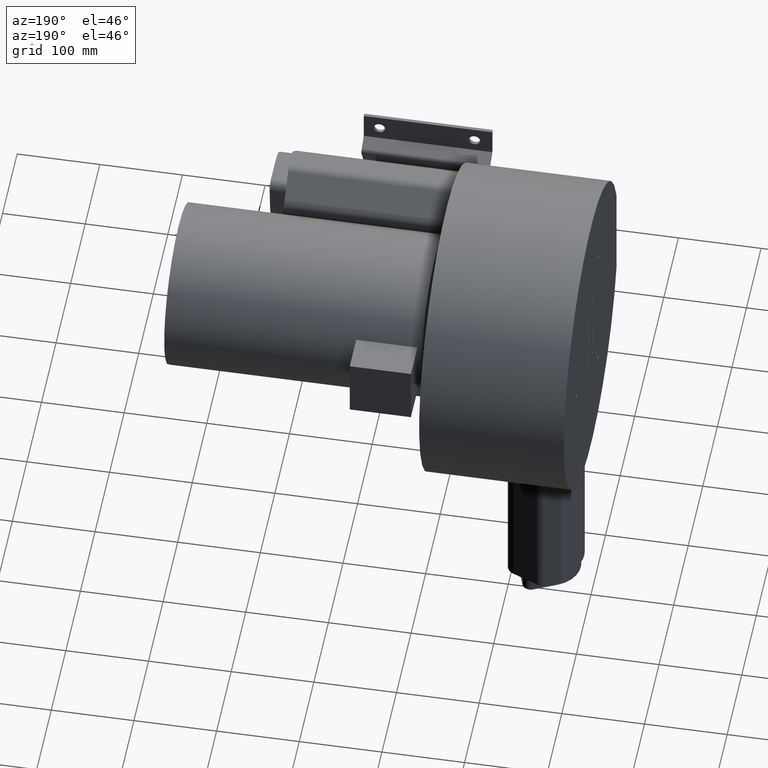
[diagram: clean part render]
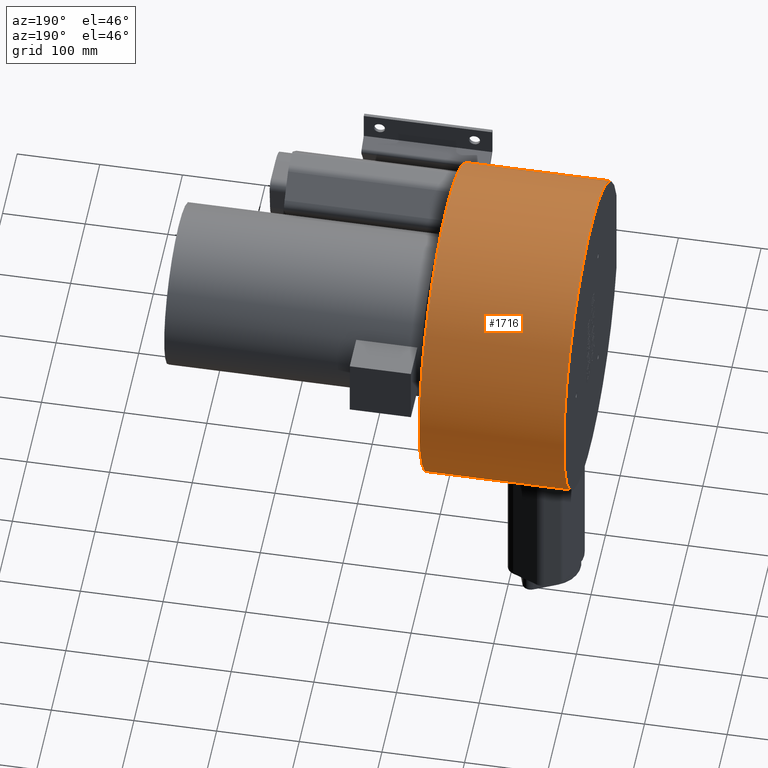
[diagram: same view with one face highlighted and labeled with its STEP entity id]
A machine part, auxiliary view. The second image highlights one B-rep face of the part: STEP entity #1716.
In plain terms, the highlighted cylindrical surface (partial cylindrical patch) has radius 186 mm, axis along (1, 0, 0).
Its self-contained STEP definition (entity closure, byte-faithful):
#331=CARTESIAN_POINT('',(175.0,-154.94938846386498,-102.8916275246644));
#332=VERTEX_POINT('',#331);
#340=CARTESIAN_POINT('',(175.0,-154.94938846386498,102.8916275246644));
#341=VERTEX_POINT('',#340);
#342=CARTESIAN_POINT('',(175.0,0.0,0.0));
#343=DIRECTION('',(1.0,0.0,0.0));
#344=DIRECTION('',(0.0,1.0,0.0));
#345=AXIS2_PLACEMENT_3D('',#342,#343,#344);
#346=CIRCLE('',#345,186.0);
#347=EDGE_CURVE('',#332,#341,#346,.T.);
#1478=CARTESIAN_POINT('',(87.5,0.0,0.0));
#1479=DIRECTION('',(1.0,0.0,0.0));
#1480=DIRECTION('',(0.0,1.0,0.0));
#1481=AXIS2_PLACEMENT_3D('',#1478,#1479,#1480);
#1482=CYLINDRICAL_SURFACE('',#1481,186.0);
#1483=CARTESIAN_POINT('',(150.0,-154.94938846386495,-102.89162752466441));
#1484=VERTEX_POINT('',#1483);
#1485=CARTESIAN_POINT('',(150.00000000000003,-175.0,-63.015871016752627));
#1486=VERTEX_POINT('',#1485);
#1487=CARTESIAN_POINT('',(150.00000000000003,0.0,0.0));
#1488=DIRECTION('',(-1.0,0.0,0.0));
#1489=DIRECTION('',(0.0,1.0,0.0));
#1490=AXIS2_PLACEMENT_3D('',#1487,#1488,#1489);
#1491=CIRCLE('',#1490,186.0);
#1492=EDGE_CURVE('',#1484,#1486,#1491,.T.);
#1493=ORIENTED_EDGE('',*,*,#1492,.T.);
#1494=CARTESIAN_POINT('',(0.0,-175.0,-63.015871016752627));
#1495=VERTEX_POINT('',#1494);
#1496=CARTESIAN_POINT('',(150.00000000000003,-175.0,-63.015871016752627));
#1497=DIRECTION('',(-1.0,0.0,0.0));
#1498=VECTOR('',#1497,150.00000000000003);
#1499=LINE('',#1496,#1498);
#1500=EDGE_CURVE('',#1486,#1495,#1499,.T.);
#1501=ORIENTED_EDGE('',*,*,#1500,.T.);
#1502=CARTESIAN_POINT('',(0.0,-175.0,63.015871016752627));
#1503=VERTEX_POINT('',#1502);
#1504=CARTESIAN_POINT('',(0.0,0.0,0.0));
#1505=DIRECTION('',(1.0,0.0,0.0));
#1506=DIRECTION('',(0.0,1.0,0.0));
#1507=AXIS2_PLACEMENT_3D('',#1504,#1505,#1506);
#1508=CIRCLE('',#1507,186.0);
#1509=EDGE_CURVE('',#1495,#1503,#1508,.T.);
#1510=ORIENTED_EDGE('',*,*,#1509,.T.);
#1511=CARTESIAN_POINT('',(150.00000000000003,-175.0,63.015871016752627));
#1512=VERTEX_POINT('',#1511);
#1513=CARTESIAN_POINT('',(0.0,-175.0,63.015871016752627));
#1514=DIRECTION('',(1.0,0.0,0.0));
#1515=VECTOR('',#1514,150.00000000000003);
#1516=LINE('',#1513,#1515);
#1517=EDGE_CURVE('',#1503,#1512,#1516,.T.);
#1518=ORIENTED_EDGE('',*,*,#1517,.T.);
#1519=CARTESIAN_POINT('',(150.0,-154.94938846386495,102.89162752466441));
#1520=VERTEX_POINT('',#1519);
#1521=CARTESIAN_POINT('',(150.00000000000003,0.0,0.0));
#1522=DIRECTION('',(-1.0,0.0,0.0));
#1523=DIRECTION('',(0.0,1.0,0.0));
#1524=AXIS2_PLACEMENT_3D('',#1521,#1522,#1523);
#1525=CIRCLE('',#1524,186.0);
#1526=EDGE_CURVE('',#1512,#1520,#1525,.T.);
#1527=ORIENTED_EDGE('',*,*,#1526,.T.);
#1528=CARTESIAN_POINT('',(150.0,-154.94938846386495,102.89162752466441));
#1529=DIRECTION('',(1.0,0.0,0.0));
#1530=VECTOR('',#1529,25.0);
#1531=LINE('',#1528,#1530);
#1532=EDGE_CURVE('',#1520,#341,#1531,.T.);
#1533=ORIENTED_EDGE('',*,*,#1532,.T.);
#1534=ORIENTED_EDGE('',*,*,#347,.F.);
#1535=CARTESIAN_POINT('',(175.0,-154.94938846386495,-102.89162752466441));
#1536=DIRECTION('',(-1.0,0.0,0.0));
#1537=VECTOR('',#1536,25.0);
#1538=LINE('',#1535,#1537);
#1539=EDGE_CURVE('',#332,#1484,#1538,.T.);
#1540=ORIENTED_EDGE('',*,*,#1539,.T.);
#1541=EDGE_LOOP('',(#1493,#1501,#1510,#1518,#1527,#1533,#1534,#1540));
#1542=FACE_OUTER_BOUND('',#1541,.T.);
#1543=CARTESIAN_POINT('',(60.672517596844138,26.416298012487633,-184.11458171289812));
#1544=VERTEX_POINT('',#1543);
#1545=CARTESIAN_POINT('',(52.076432770080118,26.41629801248763,-184.11458171289812));
#1546=VERTEX_POINT('',#1545);
#1547=CARTESIAN_POINT('',(60.67251759684406,26.416298012487452,-184.11458171289814));
#1548=CARTESIAN_POINT('',(60.642278719678544,26.429133654314668,-184.1127400872293));
#1549=CARTESIAN_POINT('',(60.611980943992677,26.441834429727244,-184.11091644200945));
#1550=CARTESIAN_POINT('',(59.228469180126837,27.014526311459722,-184.02862708974695));
#1551=CARTESIAN_POINT('',(57.756023922748881,27.290744624510591,-183.98699752384607));
#1552=CARTESIAN_POINT('',(56.374475183462131,27.290744624510591,-183.98699752384607));
#1553=CARTESIAN_POINT('',(54.992926444175374,27.290744624510591,-183.98699752384607));
#1554=CARTESIAN_POINT('',(53.520481186797404,27.014526311459726,-184.02862708974695));
#1555=CARTESIAN_POINT('',(52.136969422931557,26.441834429727248,-184.11091644200945));
#1556=CARTESIAN_POINT('',(52.106671647245705,26.429133654314665,-184.11274008722933));
#1557=CARTESIAN_POINT('',(52.076432770080203,26.416298012487452,-184.11458171289814));
#1558=B_SPLINE_CURVE_WITH_KNOTS('',3,(#1547,#1548,#1549,#1550,#1551,#1552,#1553,#1554,#1555,#1556,#1557),.UNSPECIFIED.,.F.,.U.,(4,2,3,2,4),(-0.423762096486398,-0.414464621786026,0.0,0.414464621786026,0.423762096486397),.UNSPECIFIED.);
#1559=EDGE_CURVE('',#1544,#1546,#1558,.T.);
#1560=ORIENTED_EDGE('',*,*,#1559,.T.);
#1561=CARTESIAN_POINT('',(33.666335701031315,18.601675442702156,-185.0674949058434));
#1562=VERTEX_POINT('',#1561);
#1563=CARTESIAN_POINT('',(-10.156465398944157,0.0,0.0));
#1564=DIRECTION('',(-0.390731128489274,0.92050485345244,0.0));
#1565=DIRECTION('',(0.92050485345244,0.390731128489274,0.0));
#1566=AXIS2_PLACEMENT_3D('',#1563,#1564,#1565);
#1567=ELLIPSE('',#1566,476.0306677360262,186.0);
#1568=EDGE_CURVE('',#1546,#1562,#1567,.T.);
#1569=ORIENTED_EDGE('',*,*,#1568,.T.);
#1570=CARTESIAN_POINT('',(29.957919626289158,14.893259367959985,-185.40277998292981));
#1571=VERTEX_POINT('',#1570);
#1572=CARTESIAN_POINT('',(33.666335701031315,18.601675442702156,-185.0674949058434));
#1573=CARTESIAN_POINT('',(32.825470987747735,18.244749548073965,-185.10337057192049));
#1574=CARTESIAN_POINT('',(32.059260977552242,17.715443782242751,-185.15543557748242));
#1575=CARTESIAN_POINT('',(30.843572723800946,16.499755528491452,-185.26772802930981));
#1576=CARTESIAN_POINT('',(30.314609575826349,15.733568229442756,-185.33527863357349));
#1577=CARTESIAN_POINT('',(29.957919626289147,14.893259367959985,-185.40277998292979));
#1578=B_SPLINE_CURVE_WITH_KNOTS('',3,(#1572,#1573,#1574,#1575,#1576,#1577),.UNSPECIFIED.,.F.,.U.,(4,2,4),(0.269561818126746,0.527874741009071,0.786433650384962),.UNSPECIFIED.);
#1579=EDGE_CURVE('',#1562,#1571,#1578,.T.);
#1580=ORIENTED_EDGE('',*,*,#1579,.T.);
#1581=CARTESIAN_POINT('',(16.282330129164588,-17.324410502875434,-185.19142744934999));
#1582=VERTEX_POINT('',#1581);
#1583=CARTESIAN_POINT('',(23.636106093312375,0.0,0.0));
#1584=DIRECTION('',(-0.92050485345244,0.390731128489273,0.0));
#1585=DIRECTION('',(0.390731128489273,0.92050485345244,0.0));
#1586=AXIS2_PLACEMENT_3D('',#1583,#1584,#1585);
#1587=ELLIPSE('',#1586,202.06303019738507,186.0);
#1588=EDGE_CURVE('',#1571,#1582,#1587,.T.);
#1589=ORIENTED_EDGE('',*,*,#1588,.T.);
#1590=CARTESIAN_POINT('',(16.282330129164588,-44.675589497124562,-180.55495480070442));
#1591=VERTEX_POINT('',#1590);
#1592=CARTESIAN_POINT('',(16.282330129164588,-17.32441050287543,-185.19142744934999));
#1593=CARTESIAN_POINT('',(16.235786679769038,-17.434059998247541,-185.18116988562028));
#1594=CARTESIAN_POINT('',(16.189807152236387,-17.54393737064386,-185.1707927633808));
#1595=CARTESIAN_POINT('',(15.254335876530888,-19.811868906232487,-184.9545577630289));
#1596=CARTESIAN_POINT('',(14.583771579740128,-22.058174531051122,-184.70137938267317));
#1597=CARTESIAN_POINT('',(13.706552818091884,-26.563466875876319,-184.10742743584112));
#1598=CARTESIAN_POINT('',(13.500000000000005,-28.82245901777442,-183.76654488128284));
#1599=CARTESIAN_POINT('',(13.500000000000005,-33.233599626053696,-183.02092603062425));
#1600=CARTESIAN_POINT('',(13.717137718034692,-35.534615403521983,-182.58893887451163));
#1601=CARTESIAN_POINT('',(14.623088911619801,-40.097534857269267,-181.6414522887315));
#1602=CARTESIAN_POINT('',(15.311590824829441,-42.359518630240593,-181.12604071495937));
#1603=CARTESIAN_POINT('',(16.239697659773789,-44.574825436909705,-180.57986498512108));
#1604=CARTESIAN_POINT('',(16.260955100430277,-44.62523308511129,-180.56741473233097));
#1605=CARTESIAN_POINT('',(16.282330129164588,-44.675589497124562,-180.55495480070442));
#1606=B_SPLINE_CURVE_WITH_KNOTS('',3,(#1592,#1593,#1594,#1595,#1596,#1597,#1598,#1599,#1600,#1601,#1602,#1603,#1604,#1605),.UNSPECIFIED.,.F.,.U.,(4,2,2,2,2,2,4),(3.929632023070351,3.963434959410756,4.625963848761272,5.288492738111789,5.968077779946741,6.647662821781692,6.663502492828704),.UNSPECIFIED.);
#1607=EDGE_CURVE('',#1582,#1591,#1606,.T.);
#1608=ORIENTED_EDGE('',*,*,#1607,.T.);
#1609=CARTESIAN_POINT('',(29.957919626289158,-76.893259367959985,-169.36182174200783));
#1610=VERTEX_POINT('',#1609);
#1611=CARTESIAN_POINT('',(-2.681332511683063,0.0,0.0));
#1612=DIRECTION('',(-0.920504853452441,-0.390731128489273,0.0));
#1613=DIRECTION('',(-0.390731128489273,0.920504853452441,0.0));
#1614=AXIS2_PLACEMENT_3D('',#1611,#1612,#1613);
#1615=ELLIPSE('',#1614,202.06303019738505,186.00000000000003);
#1616=EDGE_CURVE('',#1591,#1610,#1615,.T.);
#1617=ORIENTED_EDGE('',*,*,#1616,.T.);
#1618=CARTESIAN_POINT('',(33.666335701031315,-80.60167544270216,-167.62866674834979));
#1619=VERTEX_POINT('',#1618);
#1620=CARTESIAN_POINT('',(29.957919626289147,-76.893259367959985,-169.36182174200781));
#1621=CARTESIAN_POINT('',(30.311120824627231,-77.725349246676544,-168.98403823564547));
#1622=CARTESIAN_POINT('',(30.835175464764486,-78.491358269455006,-168.62849916114104));
#1623=CARTESIAN_POINT('',(32.049467010612638,-79.705649815303147,-168.05786388782153));
#1624=CARTESIAN_POINT('',(32.814533526148139,-80.240106871071674,-167.80252145486361));
#1625=CARTESIAN_POINT('',(33.666335701031322,-80.60167544270216,-167.62866674834979));
#1626=B_SPLINE_CURVE_WITH_KNOTS('',3,(#1620,#1621,#1622,#1623,#1624,#1625),.UNSPECIFIED.,.F.,.U.,(4,2,4),(1.391187130241337,1.666822060546112,1.934065503232353),.UNSPECIFIED.);
#1627=EDGE_CURVE('',#1610,#1619,#1626,.T.);
#1628=ORIENTED_EDGE('',*,*,#1627,.T.);
#1629=CARTESIAN_POINT('',(52.076432770080118,-88.41629801248763,-163.64155415348199));
#1630=VERTEX_POINT('',#1629);
#1631=CARTESIAN_POINT('',(-156.21931208001712,0.0,0.0));
#1632=DIRECTION('',(-0.390731128489273,-0.92050485345244,0.0));
#1633=DIRECTION('',(-0.92050485345244,0.390731128489273,0.0));
#1634=AXIS2_PLACEMENT_3D('',#1631,#1632,#1633);
#1635=ELLIPSE('',#1634,476.0306677360266,186.0);
#1636=EDGE_CURVE('',#1619,#1630,#1635,.T.);
#1637=ORIENTED_EDGE('',*,*,#1636,.T.);
#1638=CARTESIAN_POINT('',(60.672517596844138,-88.41629801248763,-163.64155415348199));
#1639=VERTEX_POINT('',#1638);
#1640=CARTESIAN_POINT('',(52.07643277008021,-88.416298012487459,-163.64155415348208));
#1641=CARTESIAN_POINT('',(52.124259417639834,-88.436599219920268,-163.63058531603929));
#1642=CARTESIAN_POINT('',(52.172258344195626,-88.45657362641829,-163.61978817028137));
#1643=CARTESIAN_POINT('',(53.542723912938172,-89.015505582620577,-163.31753014200967));
#1644=CARTESIAN_POINT('',(54.996836328362342,-89.290744624510609,-163.16605935181627));
#1645=CARTESIAN_POINT('',(57.752114038561913,-89.290744624510609,-163.16605935181627));
#1646=CARTESIAN_POINT('',(59.206226453986119,-89.015505582620577,-163.31753014200967));
#1647=CARTESIAN_POINT('',(60.576692022728658,-88.456573626418276,-163.61978817028137));
#1648=CARTESIAN_POINT('',(60.624690949284428,-88.436599219920268,-163.63058531603929));
#1649=CARTESIAN_POINT('',(60.672517596844045,-88.416298012487459,-163.64155415348208));
#1650=B_SPLINE_CURVE_WITH_KNOTS('',3,(#1640,#1641,#1642,#1643,#1644,#1645,#1646,#1647,#1648,#1649),.UNSPECIFIED.,.F.,.U.,(4,2,2,2,4),(3.060443554674177,3.075497194044834,3.48878885057477,3.902080507104706,3.917134146475362),.UNSPECIFIED.);
#1651=EDGE_CURVE('',#1630,#1639,#1650,.T.);
#1652=ORIENTED_EDGE('',*,*,#1651,.T.);
#1653=CARTESIAN_POINT('',(91.868629886375118,-75.174333981934765,-170.13177101991425));
#1654=VERTEX_POINT('',#1653);
#1655=CARTESIAN_POINT('',(268.96826244694103,0.0,0.0));
#1656=DIRECTION('',(0.390731128489274,-0.92050485345244,0.0));
#1657=DIRECTION('',(0.92050485345244,0.390731128489274,0.0));
#1658=AXIS2_PLACEMENT_3D('',#1655,#1656,#1657);
#1659=ELLIPSE('',#1658,476.03066773602598,186.00000000000003);
#1660=EDGE_CURVE('',#1639,#1654,#1659,.T.);
#1661=ORIENTED_EDGE('',*,*,#1660,.T.);
#1662=CARTESIAN_POINT('',(99.970335128895087,-58.851801527950364,-176.44394423418092));
#1663=VERTEX_POINT('',#1662);
#1664=CARTESIAN_POINT('',(91.868629886375132,-75.174333981934794,-170.13177101991425));
#1665=CARTESIAN_POINT('',(93.50409748579338,-74.480119173254963,-170.43851640656396));
#1666=CARTESIAN_POINT('',(94.98197399660539,-73.467069193922399,-170.88041007536964));
#1667=CARTESIAN_POINT('',(97.456425326427365,-71.063440501058196,-171.89495539802738));
#1668=CARTESIAN_POINT('',(98.566817578367548,-69.465367519632352,-172.55168553493658));
#1669=CARTESIAN_POINT('',(100.03783710569027,-65.969828719398549,-173.91809326213999));
#1670=CARTESIAN_POINT('',(100.39839408752529,-64.071809357746304,-174.62643007066464));
#1671=CARTESIAN_POINT('',(100.3983940875253,-61.17348919616974,-175.6564869366199));
#1672=CARTESIAN_POINT('',(100.26204987694791,-60.004232401551221,-176.05955794457367));
#1673=CARTESIAN_POINT('',(99.970335128895073,-58.851801527950364,-176.44394423418089));
#1674=B_SPLINE_CURVE_WITH_KNOTS('',3,(#1664,#1665,#1666,#1667,#1668,#1669,#1670,#1671,#1672,#1673),.UNSPECIFIED.,.F.,.U.,(4,2,2,2,4),(4.895256996387648,5.405823228429842,5.973991358484736,6.54215948853963,6.896767020034848),.UNSPECIFIED.);
#1675=EDGE_CURVE('',#1654,#1663,#1674,.T.);
#1676=ORIENTED_EDGE('',*,*,#1675,.T.);
#1677=CARTESIAN_POINT('',(99.970335128895087,-3.148198472049644,-185.97335520547179));
#1678=VERTEX_POINT('',#1677);
#1679=CARTESIAN_POINT('',(99.970335128895044,-58.851801527950371,-176.44394423418089));
#1680=CARTESIAN_POINT('',(99.544169660755117,-57.168217663832344,-177.00549336445442));
#1681=CARTESIAN_POINT('',(99.156194008813912,-55.472966353683724,-177.54413095891829));
#1682=CARTESIAN_POINT('',(97.269910253928941,-46.261254320520479,-180.32582112667734));
#1683=CARTESIAN_POINT('',(96.499999999999986,-38.578468195711793,-182.117478348102));
#1684=CARTESIAN_POINT('',(96.499999999999986,-23.963550149908997,-184.58785038188577));
#1685=CARTESIAN_POINT('',(97.165882384235474,-16.658659567699733,-185.39577165833609));
#1686=CARTESIAN_POINT('',(98.981944795326555,-7.298980491519461,-185.8684203574345));
#1687=CARTESIAN_POINT('',(99.446095662802648,-5.21922761924746,-185.93829636174883));
#1688=CARTESIAN_POINT('',(99.970335128895044,-3.148198472049635,-185.97335520547176));
#1689=B_SPLINE_CURVE_WITH_KNOTS('',3,(#1679,#1680,#1681,#1682,#1683,#1684,#1685,#1686,#1687,#1688),.UNSPECIFIED.,.F.,.U.,(4,2,2,2,4),(51.551268016835415,52.074610008270398,54.380400878645403,56.521279669081167,57.133654325054486),.UNSPECIFIED.);
#1690=EDGE_CURVE('',#1663,#1678,#1689,.T.);
#1691=ORIENTED_EDGE('',*,*,#1690,.T.);
#1692=CARTESIAN_POINT('',(91.868629886375118,13.174333981934776,-185.53284594414123));
#1693=VERTEX_POINT('',#1692);
#1694=CARTESIAN_POINT('',(99.970335128895073,-3.148198472049641,-185.97335520547182));
#1695=CARTESIAN_POINT('',(100.2603612042121,-2.002438768175901,-185.99275088150878));
#1696=CARTESIAN_POINT('',(100.3983940875253,-0.833273185803679,-186.00150877596411));
#1697=CARTESIAN_POINT('',(100.39839408752529,2.045929585363634,-185.99706201173592));
#1698=CARTESIAN_POINT('',(100.04677611540333,3.921315924316607,-185.96666410785059));
#1699=CARTESIAN_POINT('',(98.617769064614805,7.370452145322646,-185.86192001911175));
#1700=CARTESIAN_POINT('',(97.540418227995104,8.944260742939358,-185.78899035988945));
#1701=CARTESIAN_POINT('',(95.082072947257785,11.402548696136442,-185.65415209098194));
#1702=CARTESIAN_POINT('',(93.549677645508055,12.460771543337273,-185.58351465369077));
#1703=CARTESIAN_POINT('',(91.868629886375118,13.174333981934794,-185.53284594414123));
#1704=B_SPLINE_CURVE_WITH_KNOTS('',3,(#1694,#1695,#1696,#1697,#1698,#1699,#1700,#1701,#1702,#1703),.UNSPECIFIED.,.F.,.U.,(4,2,2,2,4),(5.994694619596224,6.330856786341247,6.858456481111809,7.38605617588237,7.902216045620198),.UNSPECIFIED.);
#1705=EDGE_CURVE('',#1678,#1693,#1704,.T.);
#1706=ORIENTED_EDGE('',*,*,#1705,.T.);
#1707=CARTESIAN_POINT('',(122.9054157658684,0.0,0.0));
#1708=DIRECTION('',(0.390731128489274,0.92050485345244,0.0));
#1709=DIRECTION('',(-0.92050485345244,0.390731128489274,0.0));
#1710=AXIS2_PLACEMENT_3D('',#1707,#1708,#1709);
#1711=ELLIPSE('',#1710,476.03066773602598,186.00000000000003);
#1712=EDGE_CURVE('',#1693,#1544,#1711,.T.);
#1713=ORIENTED_EDGE('',*,*,#1712,.T.);
#1714=EDGE_LOOP('',(#1560,#1569,#1580,#1589,#1608,#1617,#1628,#1637,#1652,#1661,#1676,#1691,#1706,#1713));
#1715=FACE_BOUND('',#1714,.T.);
#1716=ADVANCED_FACE('',(#1542,#1715),#1482,.T.);